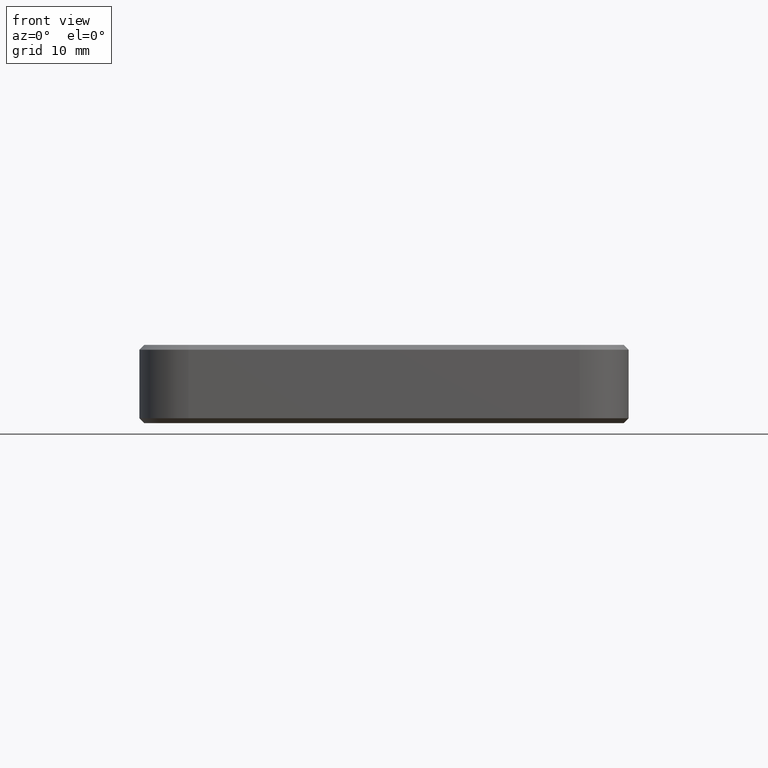
[diagram: clean part render]
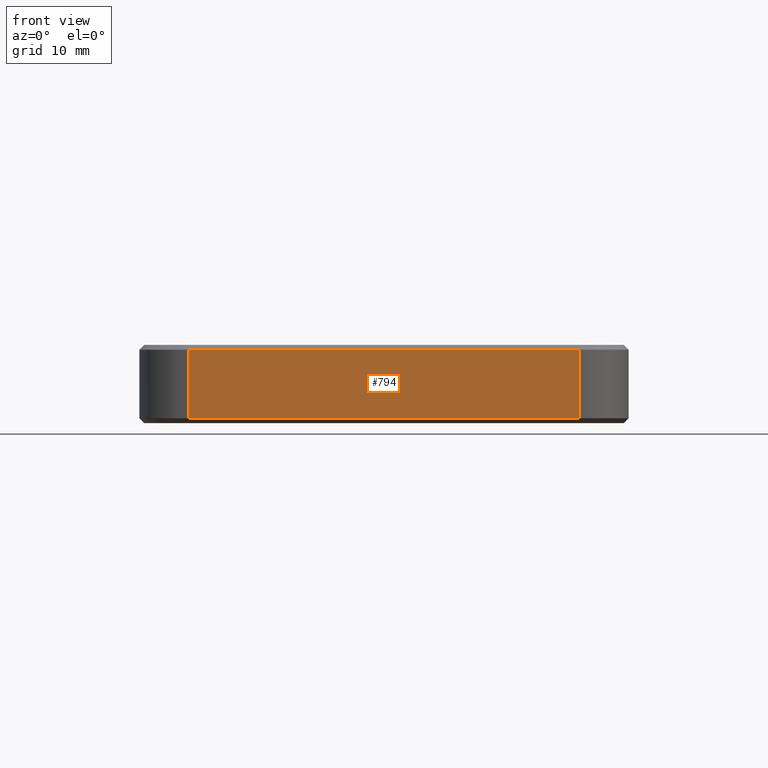
[diagram: same view with one face highlighted and labeled with its STEP entity id]
A machine part, front view. The second image highlights one B-rep face of the part: STEP entity #794.
In plain terms, the highlighted planar face has unit normal (0, 1, 0).
Its self-contained STEP definition (entity closure, byte-faithful):
#19 = DIRECTION ( 'NONE',  ( -0.0000000000000000000, 0.0000000000000000000, -1.000000000000000000 ) ) ;
#84 = VECTOR ( 'NONE', #19, 1000.000000000000000 ) ;
#105 = VERTEX_POINT ( 'NONE', #2173 ) ;
#184 = LINE ( 'NONE', #2208, #438 ) ;
#249 = DIRECTION ( 'NONE',  ( 0.0000000000000000000, -0.0000000000000000000, 1.000000000000000000 ) ) ;
#373 = CARTESIAN_POINT ( 'NONE',  ( 19.99999999999999645, -27.49999999999999289, 0.4999999999999935052 ) ) ;
#411 = FACE_OUTER_BOUND ( 'NONE', #556, .T. ) ;
#438 = VECTOR ( 'NONE', #697, 1000.000000000000000 ) ;
#445 = CARTESIAN_POINT ( 'NONE',  ( 19.99999999999999645, -27.49999999999999289, 8.000000000000000000 ) ) ;
#525 = CARTESIAN_POINT ( 'NONE',  ( -20.00000000000000000, -27.49999999999999289, 8.000000000000000000 ) ) ;
#556 = EDGE_LOOP ( 'NONE', ( #966, #1536, #1832, #904 ) ) ;
#684 = AXIS2_PLACEMENT_3D ( 'NONE', #885, #1584, #249 ) ;
#697 = DIRECTION ( 'NONE',  ( 1.000000000000000000, 0.0000000000000000000, 0.0000000000000000000 ) ) ;
#736 = LINE ( 'NONE', #1402, #2152 ) ;
#764 = LINE ( 'NONE', #445, #1001 ) ;
#794 = ADVANCED_FACE ( 'NONE', ( #411 ), #1384, .F. ) ;
#809 = VERTEX_POINT ( 'NONE', #1086 ) ;
#885 = CARTESIAN_POINT ( 'NONE',  ( -25.00000000000000000, -27.49999999999999289, 8.000000000000000000 ) ) ;
#904 = ORIENTED_EDGE ( 'NONE', *, *, #2029, .T. ) ;
#963 = EDGE_CURVE ( 'NONE', #1858, #105, #764, .T. ) ;
#966 = ORIENTED_EDGE ( 'NONE', *, *, #1534, .T. ) ;
#1001 = VECTOR ( 'NONE', #1451, 1000.000000000000000 ) ;
#1085 = EDGE_CURVE ( 'NONE', #809, #1858, #184, .T. ) ;
#1086 = CARTESIAN_POINT ( 'NONE',  ( -20.00000000000000000, -27.49999999999999289, 0.4999999999999935052 ) ) ;
#1384 = PLANE ( 'NONE',  #684 ) ;
#1402 = CARTESIAN_POINT ( 'NONE',  ( -20.00000000000000000, -27.49999999999999289, 7.499999999999992895 ) ) ;
#1417 = CARTESIAN_POINT ( 'NONE',  ( -20.00000000000000000, -27.49999999999999289, 7.499999999999992895 ) ) ;
#1451 = DIRECTION ( 'NONE',  ( -0.0000000000000000000, -0.0000000000000000000, 1.000000000000000000 ) ) ;
#1534 = EDGE_CURVE ( 'NONE', #1705, #809, #2196, .T. ) ;
#1536 = ORIENTED_EDGE ( 'NONE', *, *, #1085, .T. ) ;
#1584 = DIRECTION ( 'NONE',  ( 0.0000000000000000000, 1.000000000000000000, 0.0000000000000000000 ) ) ;
#1705 = VERTEX_POINT ( 'NONE', #1417 ) ;
#1832 = ORIENTED_EDGE ( 'NONE', *, *, #963, .T. ) ;
#1858 = VERTEX_POINT ( 'NONE', #373 ) ;
#2029 = EDGE_CURVE ( 'NONE', #105, #1705, #736, .T. ) ;
#2122 = DIRECTION ( 'NONE',  ( -1.000000000000000000, 0.0000000000000000000, 0.0000000000000000000 ) ) ;
#2152 = VECTOR ( 'NONE', #2122, 1000.000000000000000 ) ;
#2173 = CARTESIAN_POINT ( 'NONE',  ( 19.99999999999999645, -27.49999999999999289, 7.499999999999992895 ) ) ;
#2196 = LINE ( 'NONE', #525, #84 ) ;
#2208 = CARTESIAN_POINT ( 'NONE',  ( -25.00000000000000000, -27.49999999999999289, 0.4999999999999935052 ) ) ;